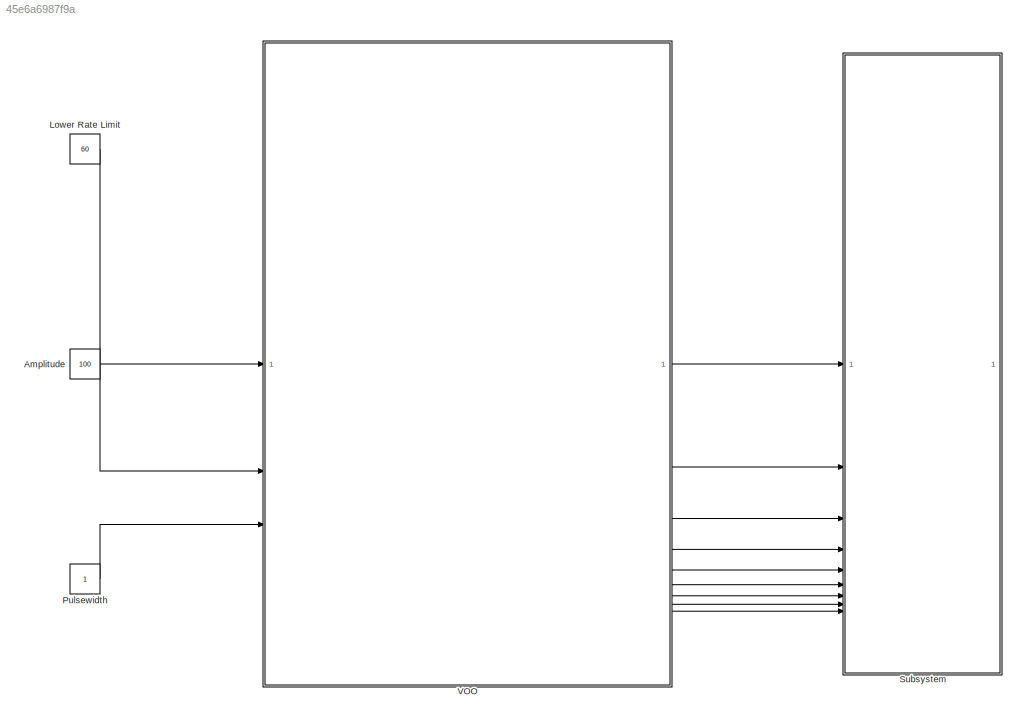
MODEL slx_45e6a6987f9a
KIND model
CONFIG AbsTol = auto
CONFIG EnableMultiTasking = on
CONFIG FixedStep = 1e-3
CONFIG MaxStep = auto
CONFIG MinStep = auto
CONFIG RelTol = 1e-3
CONFIG SampleTimeConstraint = Unconstrained
CONFIG SolverName = FixedStepAuto
CONFIG StartTime = 0.0
CONFIG StopTime = 10.0
BLOCK [Constant] Amplitude
  Value = 100
BLOCK [Constant] Lower Rate Limit
  Value = 60
BLOCK [Constant] Pulsewidth
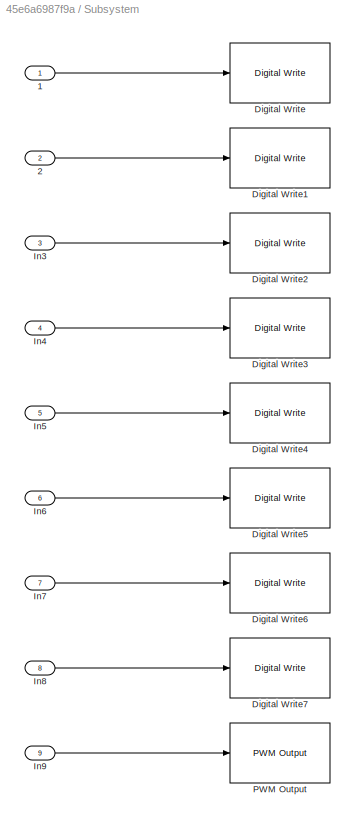
BLOCK [SubSystem] Subsystem
BLOCK [Inport] Subsystem/1
BLOCK [Inport] Subsystem/2
  Port = 2
BLOCK [Reference] Subsystem/Digital Write  REF=frdmk64flib/Digital Write
  SourceBlock = frdmk64flib/Digital Write
  SourceType = freedomk64f.DigitalWrite
BLOCK [Reference] Subsystem/Digital Write1  REF=frdmk64flib/Digital Write
  SourceBlock = frdmk64flib/Digital Write
  SourceType = freedomk64f.DigitalWrite
BLOCK [Reference] Subsystem/Digital Write2  REF=frdmk64flib/Digital Write
  SourceBlock = frdmk64flib/Digital Write
  SourceType = freedomk64f.DigitalWrite
BLOCK [Reference] Subsystem/Digital Write3  REF=frdmk64flib/Digital Write
  SourceBlock = frdmk64flib/Digital Write
  SourceType = freedomk64f.DigitalWrite
BLOCK [Reference] Subsystem/Digital Write4  REF=frdmk64flib/Digital Write
  SourceBlock = frdmk64flib/Digital Write
  SourceType = freedomk64f.DigitalWrite
BLOCK [Reference] Subsystem/Digital Write5  REF=frdmk64flib/Digital Write
  SourceBlock = frdmk64flib/Digital Write
  SourceType = freedomk64f.DigitalWrite
BLOCK [Reference] Subsystem/Digital Write6  REF=frdmk64flib/Digital Write
  SourceBlock = frdmk64flib/Digital Write
  SourceType = freedomk64f.DigitalWrite
BLOCK [Reference] Subsystem/Digital Write7  REF=frdmk64flib/Digital Write
  SourceBlock = frdmk64flib/Digital Write
  SourceType = freedomk64f.DigitalWrite
BLOCK [Inport] Subsystem/In3
  Port = 3
BLOCK [Inport] Subsystem/In4
  Port = 4
BLOCK [Inport] Subsystem/In5
  Port = 5
BLOCK [Inport] Subsystem/In6
  Port = 6
BLOCK [Inport] Subsystem/In7
  Port = 7
BLOCK [Inport] Subsystem/In8
  Port = 8
BLOCK [Inport] Subsystem/In9
  Port = 9
BLOCK [Reference] Subsystem/PWM Output  REF=frdmk64flib/PWM Output
  SourceBlock = frdmk64flib/PWM Output
  SourceType = freedomk64f.PWMOutput
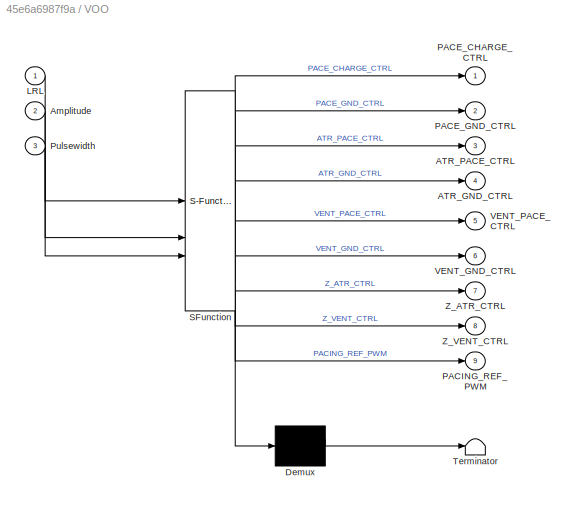
BLOCK [SubSystem] VOO
  ErrorFcn = Stateflow.Translate.translate
  PermitHierarchicalResolution = ExplicitOnly
  SFBlockType = Chart
  TreatAsAtomicUnit = on
BLOCK [Demux] VOO/ Demux 
  Outputs = 1
BLOCK [S-Function] VOO/ SFunction 
  EnableBusSupport = on
  FunctionName = sf_sfun
  PortCounts = [3 10]
  SFcnIsStateOwnerBlock = off
  SFunctionDeploymentMode = off
  Tag = Stateflow S-Function 3
BLOCK [Terminator] VOO/ Terminator 
BLOCK [Outport] VOO/ATR_GND_CTRL
  Port = 4
BLOCK [Outport] VOO/ATR_PACE_CTRL
  Port = 3
BLOCK [Inport] VOO/Amplitude
  Port = 2
BLOCK [Inport] VOO/LRL
BLOCK [Outport] VOO/PACE_CHARGE_CTRL
BLOCK [Outport] VOO/PACE_GND_CTRL
  Port = 2
BLOCK [Outport] VOO/PACING_REF_PWM
  Port = 9
BLOCK [Inport] VOO/Pulsewidth
  Port = 3
BLOCK [Outport] VOO/VENT_GND_CTRL
  Port = 6
BLOCK [Outport] VOO/VENT_PACE_CTRL
  Port = 5
BLOCK [Outport] VOO/Z_ATR_CTRL
  Port = 7
BLOCK [Outport] VOO/Z_VENT_CTRL
  Port = 8
LINE Amplitude:1 -> VOO:2
LINE Lower Rate Limit:1 -> VOO:1
LINE Pulsewidth:1 -> VOO:3
LINE Subsystem/1:1 -> Subsystem/Digital Write:1
LINE Subsystem/2:1 -> Subsystem/Digital Write1:1
LINE Subsystem/In3:1 -> Subsystem/Digital Write2:1
LINE Subsystem/In4:1 -> Subsystem/Digital Write3:1
LINE Subsystem/In5:1 -> Subsystem/Digital Write4:1
LINE Subsystem/In6:1 -> Subsystem/Digital Write5:1
LINE Subsystem/In7:1 -> Subsystem/Digital Write6:1
LINE Subsystem/In8:1 -> Subsystem/Digital Write7:1
LINE Subsystem/In9:1 -> Subsystem/PWM Output:1
LINE VOO:1 -> Subsystem:1
LINE VOO:2 -> Subsystem:2
LINE VOO:3 -> Subsystem:3
LINE VOO:4 -> Subsystem:4
LINE VOO:5 -> Subsystem:5
LINE VOO:6 -> Subsystem:6
LINE VOO:7 -> Subsystem:7
LINE VOO:8 -> Subsystem:8
LINE VOO:9 -> Subsystem:9
CHART VOO states=3 transitions=4
  STATE_LABEL 'Pacing\nentry:\nPACE_CHARGE_CTRL=0;\nPACE_GND_CTRL=1;\nATR_PACE_CTRL=0;\nATR_GND_CTRL=0;\nZ_ATR_CTRL=0;\nZ_VENT_CTRL=0;\nVENT_GND_CTRL=0;\nVENT_PACE_CTRL=1;\n'
  STATE_LABEL 'Charging\nentry:\nATR_PACE_CTRL=0;\nVENT_PACE_CTRL=0;\nPACING_REF_PWM=Amplitude;\nPACE_CHARGE_CTRL=1;\n'
  STATE_LABEL 'Discharging\nentry:\nPACE_GND_CTRL=1;\nVENT_PACE_CTRL=0;\nZ_ATR_CTRL=0;\nZ_VENT_CTRL=0;\nATR_PACE_CTRL=0;\nATR_GND_CTRL=0;\nVENT_GND_CTRL=1;\n'
CHART  states=0 transitions=0
